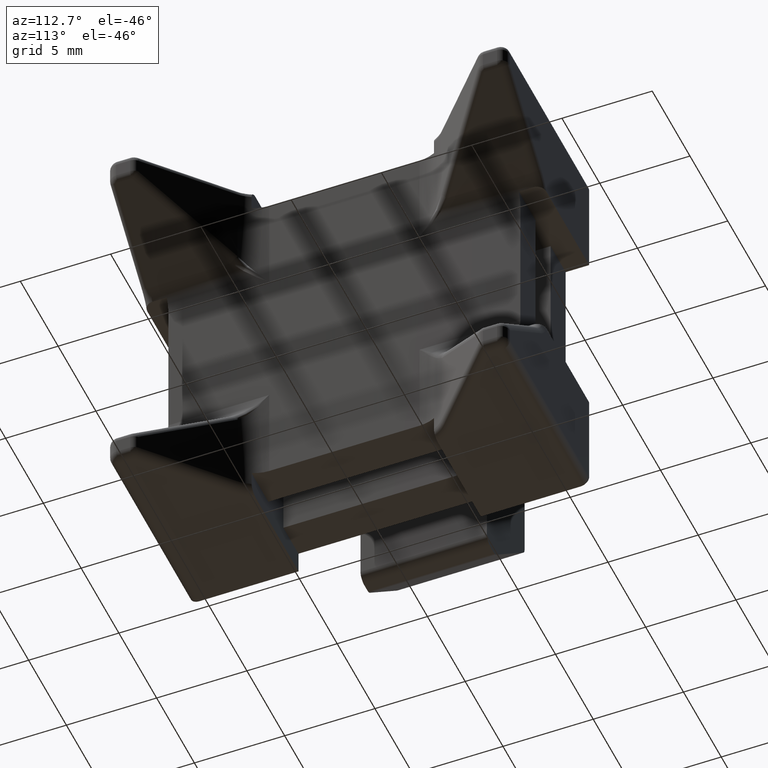
[diagram: clean part render]
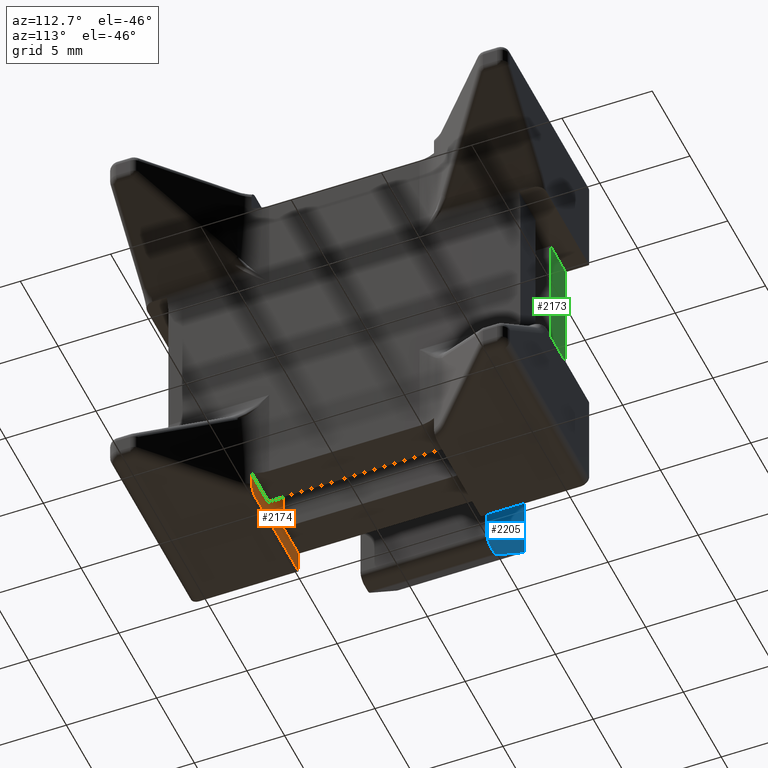
[diagram: same view with three faces highlighted in distinct colors, each labeled with its STEP entity id]
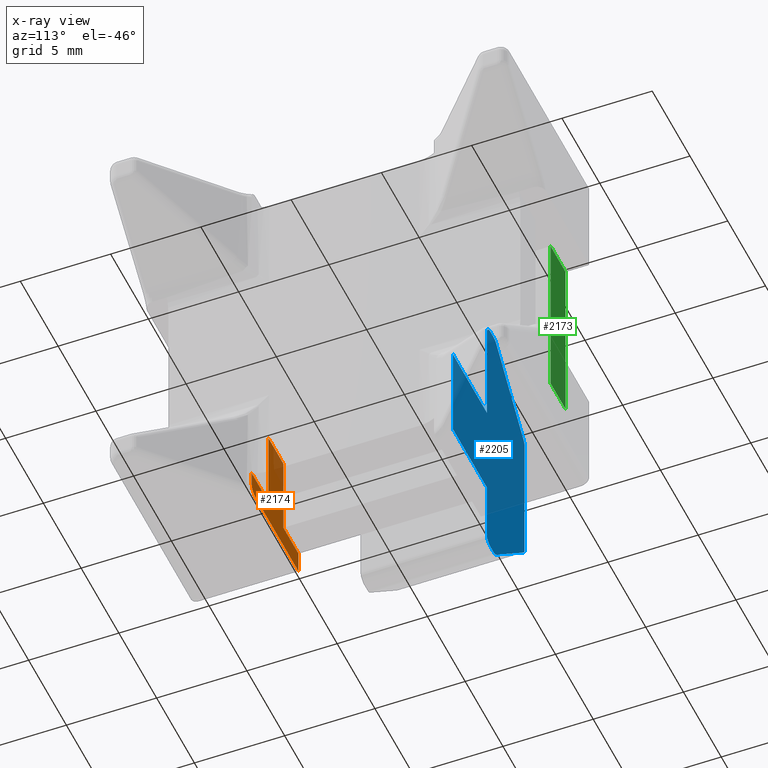
[diagram: x-ray of the same camera — body ghosted, the three highlighted faces saturated]
A machine part, auxiliary view with three faces highlighted in distinct colors.
The next image is the same camera in x-ray (body ghosted, the three faces saturated) — at least one of them is partly hidden behind the body in this view.
Their STEP definitions:

[orange] entity #2174 — the highlighted planar face has unit normal (0, -1, 0).
#42=PLANE('',#2418);
#86=B_SPLINE_CURVE_WITH_KNOTS('',3,(#3662,#3663,#3664,#3665,#3666,#3667,
#3668,#3669,#3670,#3671),.UNSPECIFIED.,.F.,.F.,(4,2,2,2,4),(0.0762535447619462,
0.0966465546208057,0.11662313698146,0.13561377765965,0.153560442282937),
 .UNSPECIFIED.);
#126=LINE('',#3293,#328);
#212=LINE('',#3722,#414);
#217=LINE('',#3735,#419);
#242=LINE('',#3790,#444);
#248=LINE('',#3799,#450);
#250=LINE('',#3803,#452);
#251=LINE('',#3805,#453);
#252=LINE('',#3806,#454);
#328=VECTOR('',#2578,10.);
#414=VECTOR('',#2910,10.);
#419=VECTOR('',#2925,10.);
#444=VECTOR('',#2986,10.);
#450=VECTOR('',#2994,10.);
#452=VECTOR('',#3000,10.);
#453=VECTOR('',#3001,10.);
#454=VECTOR('',#3002,10.);
#641=FACE_OUTER_BOUND('',#769,.T.);
#769=EDGE_LOOP('',(#1873,#1874,#1875,#1876,#1877,#1878,#1879,#1880,#1881));
#946=VERTEX_POINT('',#3290);
#947=VERTEX_POINT('',#3292);
#1037=VERTEX_POINT('',#3660);
#1038=VERTEX_POINT('',#3661);
#1046=VERTEX_POINT('',#3719);
#1047=VERTEX_POINT('',#3721);
#1050=VERTEX_POINT('',#3734);
#1062=VERTEX_POINT('',#3788);
#1065=VERTEX_POINT('',#3804);
#1155=EDGE_CURVE('',#946,#947,#126,.T.);
#1297=EDGE_CURVE('',#1037,#1038,#86,.T.);
#1314=EDGE_CURVE('',#1047,#1046,#212,.T.);
#1320=EDGE_CURVE('',#1050,#1038,#217,.F.);
#1351=EDGE_CURVE('',#1062,#1046,#242,.T.);
#1357=EDGE_CURVE('',#1050,#1062,#248,.T.);
#1359=EDGE_CURVE('',#947,#1037,#250,.T.);
#1360=EDGE_CURVE('',#1065,#946,#251,.T.);
#1361=EDGE_CURVE('',#1047,#1065,#252,.T.);
#1873=ORIENTED_EDGE('',*,*,#1297,.F.);
#1874=ORIENTED_EDGE('',*,*,#1359,.F.);
#1875=ORIENTED_EDGE('',*,*,#1155,.F.);
#1876=ORIENTED_EDGE('',*,*,#1360,.F.);
#1877=ORIENTED_EDGE('',*,*,#1361,.F.);
#1878=ORIENTED_EDGE('',*,*,#1314,.T.);
#1879=ORIENTED_EDGE('',*,*,#1351,.F.);
#1880=ORIENTED_EDGE('',*,*,#1357,.F.);
#1881=ORIENTED_EDGE('',*,*,#1320,.T.);
#2174=ADVANCED_FACE('',(#641),#42,.F.);
#2418=AXIS2_PLACEMENT_3D('',#3802,#2998,#2999);
#2578=DIRECTION('',(0.,0.,-1.));
#2910=DIRECTION('',(1.,0.,0.));
#2925=DIRECTION('',(-5.69345140833414E-17,5.12410626750073E-17,1.));
#2986=DIRECTION('',(0.,0.,1.));
#2994=DIRECTION('',(-1.,0.,1.25767452008318E-16));
#2998=DIRECTION('center_axis',(0.,-1.,0.));
#2999=DIRECTION('ref_axis',(-5.69345140833414E-17,0.,-1.));
#3000=DIRECTION('',(1.,0.,0.));
#3001=DIRECTION('',(-1.,0.,-3.08148791101958E-32));
#3002=DIRECTION('',(0.,0.,-1.));
#3290=CARTESIAN_POINT('',(0.,-5.05,0.));
#3292=CARTESIAN_POINT('',(0.,-5.05,-1.3));
#3293=CARTESIAN_POINT('',(0.,-5.05,0.2));
#3660=CARTESIAN_POINT('',(5.66406136341447,-5.05,-1.3));
#3661=CARTESIAN_POINT('',(6.20929921151158,-5.05,-0.799999999999998));
#3662=CARTESIAN_POINT('Ctrl Pts',(5.66406136341447,-5.05,-1.3));
#3663=CARTESIAN_POINT('Ctrl Pts',(5.732038062944,-5.05,-1.3));
#3664=CARTESIAN_POINT('Ctrl Pts',(5.81217491304377,-5.05,-1.28476573356723));
#3665=CARTESIAN_POINT('Ctrl Pts',(5.93739040171333,-5.05,-1.23548182795431));
#3666=CARTESIAN_POINT('Ctrl Pts',(6.00514370971155,-5.05,-1.1931201620252));
#3667=CARTESIAN_POINT('Ctrl Pts',(6.09975023349584,-5.05,-1.10411897723097));
#3668=CARTESIAN_POINT('Ctrl Pts',(6.14429489734625,-5.05,-1.04258781556191));
#3669=CARTESIAN_POINT('Ctrl Pts',(6.19407730661429,-5.05,-0.929976459394546));
#3670=CARTESIAN_POINT('Ctrl Pts',(6.20929921151158,-5.05,-0.859822215410953));
#3671=CARTESIAN_POINT('Ctrl Pts',(6.20929921151158,-5.05,-0.799999999999998));
#3719=CARTESIAN_POINT('',(4.,-5.05,4.7));
#3721=CARTESIAN_POINT('',(2.,-5.05,4.7));
#3722=CARTESIAN_POINT('',(6.,-5.05,4.7));
#3734=CARTESIAN_POINT('',(6.20929921151158,-5.05,1.78630128174717E-14));
#3735=CARTESIAN_POINT('',(6.20929921151157,-5.05,11.35));
#3788=CARTESIAN_POINT('',(4.,-5.05,1.77635683940025E-14));
#3790=CARTESIAN_POINT('',(4.,-5.05,2.35000000000001));
#3799=CARTESIAN_POINT('',(6.,-5.05,1.74860126378462E-14));
#3802=CARTESIAN_POINT('Origin',(6.,-5.05,4.7));
#3803=CARTESIAN_POINT('',(6.,-5.05,-1.3));
#3804=CARTESIAN_POINT('',(2.,-5.05,6.16297582203915E-32));
#3805=CARTESIAN_POINT('',(4.,-5.05,0.));
#3806=CARTESIAN_POINT('',(2.,-5.05,12.1));

[blue] entity #2205 — the highlighted planar face has unit normal (0, 1, 0).
#65=PLANE('',#2463);
#134=LINE('',#3313,#336);
#264=LINE('',#3836,#466);
#270=LINE('',#3850,#472);
#275=LINE('',#3865,#477);
#284=LINE('',#3894,#486);
#287=LINE('',#3902,#489);
#290=LINE('',#3910,#492);
#293=LINE('',#3918,#495);
#295=LINE('',#3924,#497);
#296=LINE('',#3926,#498);
#336=VECTOR('',#2590,10.);
#466=VECTOR('',#3042,10.);
#472=VECTOR('',#3056,10.);
#477=VECTOR('',#3069,10.);
#486=VECTOR('',#3096,10.);
#489=VECTOR('',#3105,10.);
#492=VECTOR('',#3114,10.);
#495=VECTOR('',#3123,10.);
#497=VECTOR('',#3131,10.);
#498=VECTOR('',#3134,10.);
#672=FACE_OUTER_BOUND('',#800,.T.);
#800=EDGE_LOOP('',(#2044,#2045,#2046,#2047,#2048,#2049,#2050,#2051,#2052,
#2053,#2054,#2055,#2056,#2057,#2058,#2059));
#895=CIRCLE('',#2439,0.5);
#901=CIRCLE('',#2448,0.5);
#902=CIRCLE('',#2451,0.5);
#903=CIRCLE('',#2454,0.5);
#904=CIRCLE('',#2457,0.5);
#905=CIRCLE('',#2460,0.5);
#956=VERTEX_POINT('',#3310);
#957=VERTEX_POINT('',#3312);
#1068=VERTEX_POINT('',#3832);
#1073=VERTEX_POINT('',#3848);
#1076=VERTEX_POINT('',#3855);
#1077=VERTEX_POINT('',#3857);
#1079=VERTEX_POINT('',#3863);
#1089=VERTEX_POINT('',#3888);
#1090=VERTEX_POINT('',#3892);
#1091=VERTEX_POINT('',#3896);
#1092=VERTEX_POINT('',#3900);
#1093=VERTEX_POINT('',#3904);
#1094=VERTEX_POINT('',#3908);
#1095=VERTEX_POINT('',#3912);
#1096=VERTEX_POINT('',#3916);
#1097=VERTEX_POINT('',#3920);
#1165=EDGE_CURVE('',#956,#957,#134,.T.);
#1374=EDGE_CURVE('',#957,#1068,#264,.T.);
#1381=EDGE_CURVE('',#956,#1073,#270,.T.);
#1384=EDGE_CURVE('',#1076,#1077,#895,.T.);
#1388=EDGE_CURVE('',#1076,#1079,#275,.T.);
#1401=EDGE_CURVE('',#1089,#1079,#901,.T.);
#1403=EDGE_CURVE('',#1089,#1090,#284,.T.);
#1405=EDGE_CURVE('',#1091,#1090,#902,.T.);
#1407=EDGE_CURVE('',#1091,#1092,#287,.T.);
#1409=EDGE_CURVE('',#1093,#1092,#903,.T.);
#1411=EDGE_CURVE('',#1093,#1094,#290,.T.);
#1413=EDGE_CURVE('',#1095,#1094,#904,.T.);
#1415=EDGE_CURVE('',#1095,#1096,#293,.T.);
#1417=EDGE_CURVE('',#1097,#1096,#905,.T.);
#1418=EDGE_CURVE('',#1097,#1068,#295,.T.);
#1419=EDGE_CURVE('',#1073,#1077,#296,.T.);
#2044=ORIENTED_EDGE('',*,*,#1374,.F.);
#2045=ORIENTED_EDGE('',*,*,#1165,.F.);
#2046=ORIENTED_EDGE('',*,*,#1381,.T.);
#2047=ORIENTED_EDGE('',*,*,#1419,.T.);
#2048=ORIENTED_EDGE('',*,*,#1384,.F.);
#2049=ORIENTED_EDGE('',*,*,#1388,.T.);
#2050=ORIENTED_EDGE('',*,*,#1401,.F.);
#2051=ORIENTED_EDGE('',*,*,#1403,.T.);
#2052=ORIENTED_EDGE('',*,*,#1405,.F.);
#2053=ORIENTED_EDGE('',*,*,#1407,.T.);
#2054=ORIENTED_EDGE('',*,*,#1409,.F.);
#2055=ORIENTED_EDGE('',*,*,#1411,.T.);
#2056=ORIENTED_EDGE('',*,*,#1413,.F.);
#2057=ORIENTED_EDGE('',*,*,#1415,.T.);
#2058=ORIENTED_EDGE('',*,*,#1417,.F.);
#2059=ORIENTED_EDGE('',*,*,#1418,.T.);
#2205=ADVANCED_FACE('',(#672),#65,.T.);
#2439=AXIS2_PLACEMENT_3D('',#3858,#3062,#3063);
#2448=AXIS2_PLACEMENT_3D('',#3890,#3091,#3092);
#2451=AXIS2_PLACEMENT_3D('',#3898,#3100,#3101);
#2454=AXIS2_PLACEMENT_3D('',#3906,#3109,#3110);
#2457=AXIS2_PLACEMENT_3D('',#3914,#3118,#3119);
#2460=AXIS2_PLACEMENT_3D('',#3922,#3127,#3128);
#2463=AXIS2_PLACEMENT_3D('',#3927,#3135,#3136);
#2590=DIRECTION('',(0.,0.,1.));
#3042=DIRECTION('',(-1.,0.,0.));
#3056=DIRECTION('',(-1.,0.,-2.46716227694479E-16));
#3062=DIRECTION('center_axis',(0.,-1.,0.));
#3063=DIRECTION('ref_axis',(0.707106781186548,0.,-0.707106781186547));
#3069=DIRECTION('',(-1.,0.,0.));
#3091=DIRECTION('center_axis',(0.,-1.,0.));
#3092=DIRECTION('ref_axis',(-0.382683432365089,0.,-0.923879532511287));
#3096=DIRECTION('',(-0.707106781186548,0.,0.707106781186548));
#3100=DIRECTION('center_axis',(0.,-1.,0.));
#3101=DIRECTION('ref_axis',(-0.923879532511287,0.,-0.382683432365089));
#3105=DIRECTION('',(0.,0.,1.));
#3109=DIRECTION('center_axis',(0.,-1.,0.));
#3110=DIRECTION('ref_axis',(-0.923879532511287,0.,0.382683432365089));
#3114=DIRECTION('',(0.707106781186548,0.,0.707106781186547));
#3118=DIRECTION('center_axis',(0.,-1.,0.));
#3119=DIRECTION('ref_axis',(-0.382683432365088,0.,0.923879532511287));
#3123=DIRECTION('',(1.,0.,0.));
#3127=DIRECTION('center_axis',(0.,-1.,0.));
#3128=DIRECTION('ref_axis',(0.707106781186546,0.,0.707106781186549));
#3131=DIRECTION('',(0.,0.,-1.));
#3134=DIRECTION('',(0.,0.,-1.));
#3135=DIRECTION('center_axis',(0.,1.,0.));
#3136=DIRECTION('ref_axis',(0.,0.,1.));
#3310=CARTESIAN_POINT('',(0.,3.5,5.75));
#3312=CARTESIAN_POINT('',(0.,3.5,11.25));
#3313=CARTESIAN_POINT('',(0.,3.5,4.875));
#3832=CARTESIAN_POINT('',(-4.5,3.5,11.25));
#3836=CARTESIAN_POINT('',(-4.70208332312433,3.5,11.25));
#3848=CARTESIAN_POINT('',(-4.5,3.5,5.75));
#3850=CARTESIAN_POINT('',(-4.5,3.5,5.75));
#3855=CARTESIAN_POINT('',(-5.,3.5,1.85));
#3857=CARTESIAN_POINT('',(-4.5,3.5,2.35));
#3858=CARTESIAN_POINT('Origin',(-5.,3.5,2.35));
#3863=CARTESIAN_POINT('',(-5.39289321881345,3.5,1.85));
#3865=CARTESIAN_POINT('',(-5.6,3.5,1.85));
#3888=CARTESIAN_POINT('',(-5.74644660940673,3.5,1.99644660940673));
#3890=CARTESIAN_POINT('Origin',(-5.39289321881345,3.5,2.35));
#3892=CARTESIAN_POINT('',(-9.35355339059327,3.5,5.60355339059327));
#3894=CARTESIAN_POINT('',(-9.5,3.5,5.75));
#3896=CARTESIAN_POINT('',(-9.5,3.5,5.95710678118655));
#3898=CARTESIAN_POINT('Origin',(-9.,3.5,5.95710678118655));
#3900=CARTESIAN_POINT('',(-9.5,3.5,13.5428932188135));
#3902=CARTESIAN_POINT('',(-9.5,3.5,13.75));
#3904=CARTESIAN_POINT('',(-9.35355339059327,3.5,13.8964466094067));
#3906=CARTESIAN_POINT('Origin',(-9.,3.5,13.5428932188135));
#3908=CARTESIAN_POINT('',(-5.74644660940673,3.5,17.5035533905933));
#3910=CARTESIAN_POINT('',(-5.6,3.5,17.65));
#3912=CARTESIAN_POINT('',(-5.39289321881345,3.5,17.65));
#3914=CARTESIAN_POINT('Origin',(-5.39289321881345,3.5,17.15));
#3916=CARTESIAN_POINT('',(-5.,3.5,17.65));
#3918=CARTESIAN_POINT('',(-4.5,3.5,17.65));
#3920=CARTESIAN_POINT('',(-4.5,3.5,17.15));
#3922=CARTESIAN_POINT('Origin',(-5.,3.5,17.15));
#3924=CARTESIAN_POINT('',(-4.5,3.5,13.75));
#3926=CARTESIAN_POINT('',(-4.5,3.5,1.85));
#3927=CARTESIAN_POINT('Origin',(-4.90416664624866,3.5,9.75));

[green] entity #2173 — the highlighted planar face has unit normal (0, 1, 0).
#41=PLANE('',#2417);
#120=LINE('',#3279,#322);
#165=LINE('',#3459,#367);
#237=LINE('',#3780,#439);
#249=LINE('',#3801,#451);
#322=VECTOR('',#2570,10.);
#367=VECTOR('',#2703,10.);
#439=VECTOR('',#2975,10.);
#451=VECTOR('',#2997,10.);
#640=FACE_OUTER_BOUND('',#768,.T.);
#768=EDGE_LOOP('',(#1869,#1870,#1871,#1872));
#939=VERTEX_POINT('',#3276);
#940=VERTEX_POINT('',#3278);
#991=VERTEX_POINT('',#3457);
#1060=VERTEX_POINT('',#3779);
#1148=EDGE_CURVE('',#940,#939,#120,.T.);
#1220=EDGE_CURVE('',#939,#991,#165,.T.);
#1346=EDGE_CURVE('',#1060,#940,#237,.T.);
#1358=EDGE_CURVE('',#991,#1060,#249,.T.);
#1869=ORIENTED_EDGE('',*,*,#1346,.T.);
#1870=ORIENTED_EDGE('',*,*,#1148,.T.);
#1871=ORIENTED_EDGE('',*,*,#1220,.T.);
#1872=ORIENTED_EDGE('',*,*,#1358,.T.);
#2173=ADVANCED_FACE('',(#640),#41,.T.);
#2417=AXIS2_PLACEMENT_3D('',#3800,#2995,#2996);
#2570=DIRECTION('',(0.,0.,1.));
#2703=DIRECTION('',(1.,0.,0.));
#2975=DIRECTION('',(-1.,0.,0.));
#2995=DIRECTION('center_axis',(0.,1.,0.));
#2996=DIRECTION('ref_axis',(0.,0.,1.));
#2997=DIRECTION('',(0.,0.,-1.));
#3276=CARTESIAN_POINT('',(0.,9.75,14.8));
#3278=CARTESIAN_POINT('',(0.,9.75,4.7));
#3279=CARTESIAN_POINT('',(0.,9.75,0.));
#3457=CARTESIAN_POINT('',(2.,9.75,14.8));
#3459=CARTESIAN_POINT('',(3.5,9.75,14.8));
#3779=CARTESIAN_POINT('',(2.,9.75,4.7));
#3780=CARTESIAN_POINT('',(3.5,9.75,4.7));
#3800=CARTESIAN_POINT('Origin',(1.,9.75,9.75));
#3801=CARTESIAN_POINT('',(2.,9.75,19.5));